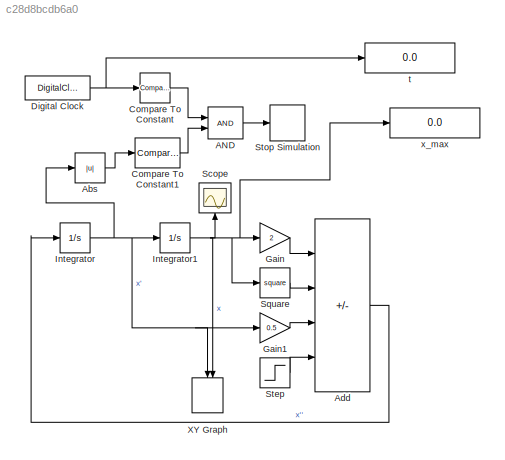
MODEL slx_c28d8bcdb6a0
KIND model
CONFIG AbsTol = auto
CONFIG EnableMultiTasking = off
CONFIG FixedStep = auto
CONFIG MaxStep = auto
CONFIG MinStep = auto
CONFIG RelTol = 1e-3
CONFIG SampleTimeConstraint = Unconstrained
CONFIG SolverName = VariableStepAuto
CONFIG StartTime = 0.0
CONFIG StopTime = 40
BLOCK [Logic] AND
  AllPortsSameDT = off
  IconShape = distinctive
  OutDataTypeStr = boolean
BLOCK [Abs] Abs
  SaturateOnIntegerOverflow = off
BLOCK [Sum] Add
  IconShape = rectangular
  Inputs = ---+
BLOCK [Reference] Compare To Constant  REF=simulink/Logic and Bit
Operations/Compare
To Constant
  SourceBlock = simulink/Logic and Bit\nOperations/Compare\nTo Constant
  SourceType = Compare To Constant
BLOCK [Reference] Compare To Constant1  REF=simulink/Logic and Bit
Operations/Compare
To Constant
  SourceBlock = simulink/Logic and Bit\nOperations/Compare\nTo Constant
  SourceType = Compare To Constant
BLOCK [DigitalClock] Digital Clock
  SampleTime = 0.001
BLOCK [Gain] Gain
  Gain = 2
BLOCK [Gain] Gain1
  Gain = 0.5
BLOCK [Integrator] Integrator
BLOCK [Integrator] Integrator1
BLOCK [Scope] Scope
  Floating = off
  NameLocation = right
  NumInputPorts = 1
  ScopeSpecificationString = Simulink.scopes.TimeScopeBlockCfg('CurrentConfiguration', extmgr.ConfigurationSet(extmgr.Configuration('Core','General UI',true,'FigureColor',[0 0 0],'DisplayFullSourceName',true),extmgr.Configuration('Core','Source UI',true),extmgr.Configuration('Sources','WiredSimulink',true),extmgr.Configuration('Visuals','Time Domain',true,'TimeAxisLabels','All','SerializedDisplays',{struct('MinYLimReal','-0.0...<+1710ch>
BLOCK [Math] Square
  Operator = square
BLOCK [Step] Step
  SampleTime = 0
BLOCK [Stop] Stop Simulation
BLOCK [Record] XY Graph
  CompatibilityTag = XY
  FileSettingsInternal = {"entries":[{"content":{"excelSettings":{"content":{},"type":"Streamout.ExcelSettings"}},"type":"Streamout.FileSettingStorage","uuid":""}],"packageUris":["http:\/\/schema.mathworks.com\/mf0\/streamout_blocks\/R2020a"],"version":"1.0"}
  Layout = [1 1]
  NameLocation = left
  RecordToWorkspace = on
  SignalsInternal = {"entries":[{"content":{"signals":[{"content":{"blockPath":[],"dimensions":[1],"domain":"","lineColor":"#a2142f","plots":[1],"port":1,"sid":[""],"signalID":778,"signalName":"x'"},"type":"RecordBlkView.Signal","uuid":""},{"content":{"blockPath":[],"dimensions":[1],"domain":"","lineColor":"#139fff","plots":[1],"port":2,"sid":[""],"signalID":782,"signalName":"x"},"type":"RecordBlkView.Signal","uuid":...<+149ch>
  VariableName = recordout_XY
  VisualizationBindings = {"xyplotplugin":{"info":[{"series":[{"bindingParametersList":[{"parameter":"X-Axis","signalID":778,"signalName":"x'"},{"parameter":"Y-Axis","signalID":782,"signalName":"x"}],"seriesID":9384}],"subplotID":1}]}}
BLOCK [Display] t
  Decimation = 1
BLOCK [Display] x_max
  Decimation = 1
LINE AND:1 -> Stop Simulation:1
LINE Abs:1 -> Compare To Constant1:1
LINE Add:1 -> Integrator:1
LINE Compare To Constant1:1 -> AND:2
LINE Compare To Constant:1 -> AND:1
NET Digital Clock:1 -> Compare To Constant:1, t:1
LINE Gain1:1 -> Add:3
LINE Gain:1 -> Add:1
NET Integrator1:1 -> Gain:1, Scope:1, Square:1, XY Graph:2, x_max:1
NET Integrator:1 -> Abs:1, Gain1:1, Integrator1:1, XY Graph:1
LINE Square:1 -> Add:2
LINE Step:1 -> Add:4
note: NET lines group one-source signal fan-out (src -> all destinations, sorted); 1:1 wires keep LINE
